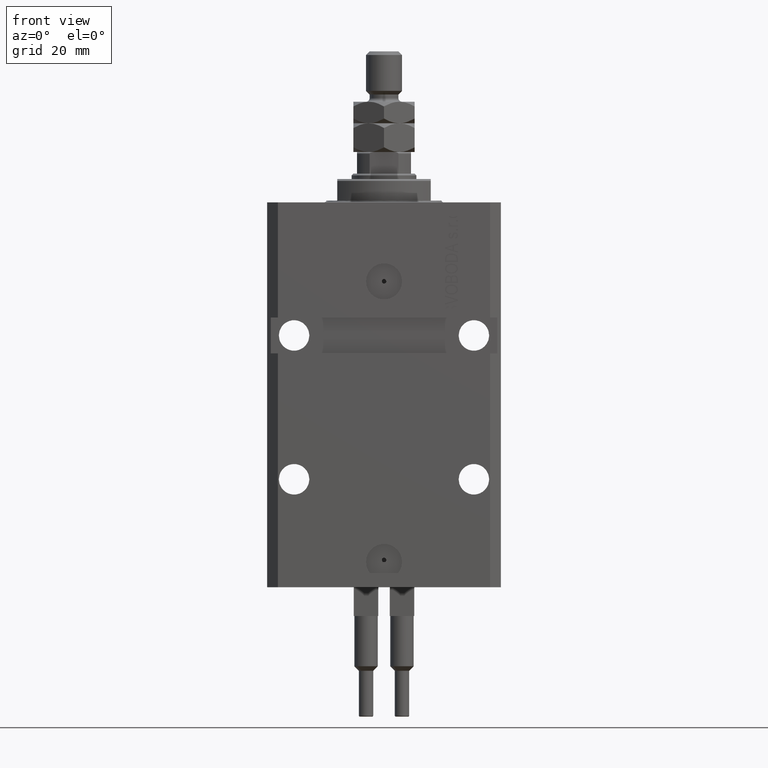
[diagram: clean part render]
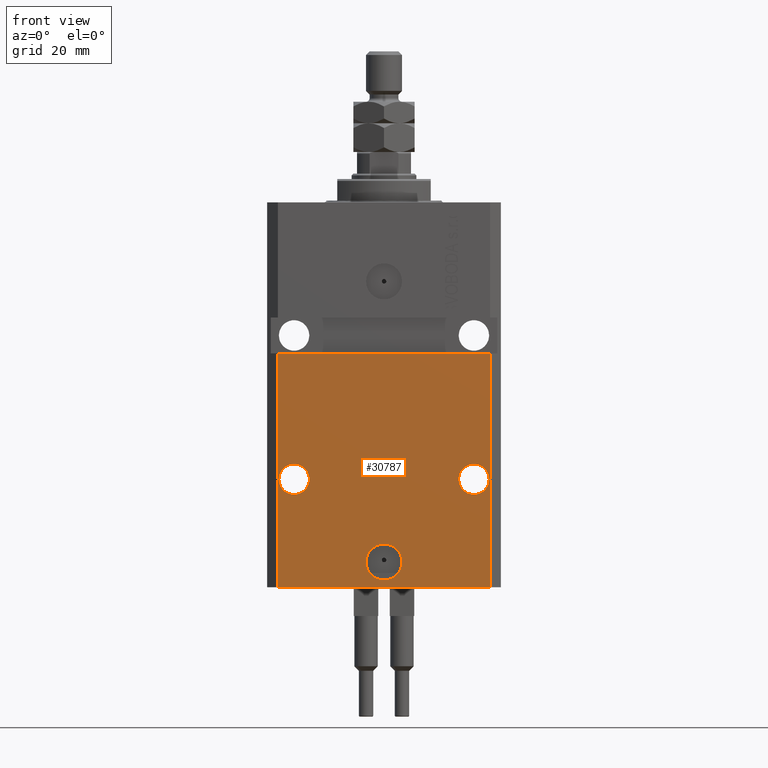
[diagram: same view with one face highlighted and labeled with its STEP entity id]
A machine part, front view. The second image highlights one B-rep face of the part: STEP entity #30787.
In plain terms, the highlighted planar face has unit normal (0, -1, 0).
Its self-contained STEP definition (entity closure, byte-faithful):
#46 = CARTESIAN_POINT ( 'NONE',  ( 20.75000000001094946, -22.49999999999949196, -76.99999999999998579 ) ) ;
#414 = CARTESIAN_POINT ( 'NONE',  ( -25.00000000000000000, -22.49999999999949907, -76.99999999999998579 ) ) ;
#962 = CARTESIAN_POINT ( 'NONE',  ( 29.49999999999650413, -22.49999999999949196, -107.0000000000000000 ) ) ;
#2114 = CARTESIAN_POINT ( 'NONE',  ( 29.49999999999650413, -22.49999999999949196, -107.0000000000000000 ) ) ;
#2456 = ORIENTED_EDGE ( 'NONE', *, *, #27126, .T. ) ;
#2990 = DIRECTION ( 'NONE',  ( 1.176083712526788232E-16, -1.000000000000000000, 0.000000000000000000 ) ) ;
#3236 = DIRECTION ( 'NONE',  ( 1.000000000000000000, 0.000000000000000000, 0.000000000000000000 ) ) ;
#3395 = VERTEX_POINT ( 'NONE', #12513 ) ;
#4142 = VERTEX_POINT ( 'NONE', #17199 ) ;
#5187 = EDGE_LOOP ( 'NONE', ( #12563, #32613 ) ) ;
#5619 = EDGE_CURVE ( 'NONE', #42084, #3395, #39750, .T. ) ;
#6086 = CARTESIAN_POINT ( 'NONE',  ( -29.49999999999650413, -22.49999999999949907, -41.99999999999999289 ) ) ;
#6750 = VERTEX_POINT ( 'NONE', #2114 ) ;
#6783 = DIRECTION ( 'NONE',  ( 1.176083712526788232E-16, -1.000000000000000000, 0.000000000000000000 ) ) ;
#6843 = CIRCLE ( 'NONE', #29567, 5.000000000000006217 ) ;
#7411 = EDGE_CURVE ( 'NONE', #35406, #6750, #7440, .T. ) ;
#7440 = LINE ( 'NONE', #50016, #13897 ) ;
#7790 = LINE ( 'NONE', #962, #25707 ) ;
#9569 = ORIENTED_EDGE ( 'NONE', *, *, #7411, .T. ) ;
#9744 = DIRECTION ( 'NONE',  ( 1.176083712526788232E-16, -1.000000000000000000, 0.000000000000000000 ) ) ;
#9929 = EDGE_LOOP ( 'NONE', ( #48056, #46658 ) ) ;
#11469 = ORIENTED_EDGE ( 'NONE', *, *, #26371, .F. ) ;
#11627 = VERTEX_POINT ( 'NONE', #27910 ) ;
#12062 = DIRECTION ( 'NONE',  ( -1.000000000000000000, 0.000000000000000000, 0.000000000000000000 ) ) ;
#12513 = CARTESIAN_POINT ( 'NONE',  ( -20.75000000002340883, -22.49999999999949907, -76.99999999999998579 ) ) ;
#12563 = ORIENTED_EDGE ( 'NONE', *, *, #46630, .F. ) ;
#12729 = AXIS2_PLACEMENT_3D ( 'NONE', #17593, #48019, #17837 ) ;
#12900 = VERTEX_POINT ( 'NONE', #20992 ) ;
#13897 = VECTOR ( 'NONE', #31044, 1000.000000000000000 ) ;
#14155 = CARTESIAN_POINT ( 'NONE',  ( -29.49999999999650413, -22.49999999999949907, -107.0000000000000000 ) ) ;
#14371 = DIRECTION ( 'NONE',  ( 1.176083712526788232E-16, -1.000000000000000000, 0.000000000000000000 ) ) ;
#14902 = ORIENTED_EDGE ( 'NONE', *, *, #28017, .F. ) ;
#15835 = EDGE_LOOP ( 'NONE', ( #28114, #11469 ) ) ;
#15862 = VERTEX_POINT ( 'NONE', #6086 ) ;
#15914 = DIRECTION ( 'NONE',  ( 0.000000000000000000, 0.000000000000000000, 1.000000000000000000 ) ) ;
#17096 = AXIS2_PLACEMENT_3D ( 'NONE', #19277, #46640, #26892 ) ;
#17199 = CARTESIAN_POINT ( 'NONE',  ( 29.24999999998906475, -22.49999999999949196, -76.99999999999998579 ) ) ;
#17345 = LINE ( 'NONE', #40402, #43044 ) ;
#17593 = CARTESIAN_POINT ( 'NONE',  ( 2.646188353185214061E-15, -22.49999999999949551, -99.99999999999998579 ) ) ;
#17837 = DIRECTION ( 'NONE',  ( 1.000000000000000000, 0.000000000000000000, 0.000000000000000000 ) ) ;
#18743 = EDGE_CURVE ( 'NONE', #3395, #42084, #34327, .T. ) ;
#19252 = VECTOR ( 'NONE', #20470, 1000.000000000000000 ) ;
#19277 = CARTESIAN_POINT ( 'NONE',  ( -25.00000000000000000, -22.49999999999949907, -76.99999999999998579 ) ) ;
#20470 = DIRECTION ( 'NONE',  ( 1.000000000000000000, 1.067522139062765303E-16, 1.067522139062765303E-16 ) ) ;
#20912 = EDGE_CURVE ( 'NONE', #11627, #22925, #6843, .T. ) ;
#20992 = CARTESIAN_POINT ( 'NONE',  ( 29.49999999999650058, -22.49999999999949196, -41.99999999999998579 ) ) ;
#21989 = PLANE ( 'NONE',  #33808 ) ;
#22740 = CARTESIAN_POINT ( 'NONE',  ( 25.00000000000000711, -22.49999999999949196, -76.99999999999998579 ) ) ;
#22801 = AXIS2_PLACEMENT_3D ( 'NONE', #45801, #2990, #3236 ) ;
#22925 = VERTEX_POINT ( 'NONE', #30522 ) ;
#24020 = LINE ( 'NONE', #32630, #19252 ) ;
#25678 = CIRCLE ( 'NONE', #12729, 5.000000000000006217 ) ;
#25707 = VECTOR ( 'NONE', #15914, 1000.000000000000000 ) ;
#26039 = FACE_OUTER_BOUND ( 'NONE', #27585, .T. ) ;
#26371 = EDGE_CURVE ( 'NONE', #22925, #11627, #25678, .T. ) ;
#26892 = DIRECTION ( 'NONE',  ( -1.000000000000000000, 0.000000000000000000, 0.000000000000000000 ) ) ;
#27126 = EDGE_CURVE ( 'NONE', #6750, #12900, #7790, .T. ) ;
#27585 = EDGE_LOOP ( 'NONE', ( #14902, #34138, #9569, #2456 ) ) ;
#27910 = CARTESIAN_POINT ( 'NONE',  ( 5.000000000000008882, -22.49999999999949551, -99.99999999999998579 ) ) ;
#28017 = EDGE_CURVE ( 'NONE', #15862, #12900, #24020, .T. ) ;
#28114 = ORIENTED_EDGE ( 'NONE', *, *, #20912, .F. ) ;
#29567 = AXIS2_PLACEMENT_3D ( 'NONE', #29779, #9744, #48774 ) ;
#29622 = CARTESIAN_POINT ( 'NONE',  ( -29.49999999999650413, -22.49999999999949907, -107.0000000000000000 ) ) ;
#29779 = CARTESIAN_POINT ( 'NONE',  ( 2.646188353185214061E-15, -22.49999999999949551, -99.99999999999998579 ) ) ;
#30522 = CARTESIAN_POINT ( 'NONE',  ( -5.000000000000003553, -22.49999999999949551, -99.99999999999998579 ) ) ;
#30652 = CIRCLE ( 'NONE', #48461, 4.249999999989057642 ) ;
#30787 = ADVANCED_FACE ( 'NONE', ( #45053, #34401, #45293, #26039 ), #21989, .T. ) ;
#31044 = DIRECTION ( 'NONE',  ( 1.000000000000000000, 1.176083712526788232E-16, 0.000000000000000000 ) ) ;
#31102 = VERTEX_POINT ( 'NONE', #46 ) ;
#31343 = DIRECTION ( 'NONE',  ( 1.176083712526788232E-16, -1.000000000000000000, 0.000000000000000000 ) ) ;
#32547 = EDGE_CURVE ( 'NONE', #31102, #4142, #30652, .T. ) ;
#32613 = ORIENTED_EDGE ( 'NONE', *, *, #32547, .F. ) ;
#32630 = CARTESIAN_POINT ( 'NONE',  ( -32.49999999999650413, -22.49999999999949907, -41.99999999999999289 ) ) ;
#33808 = AXIS2_PLACEMENT_3D ( 'NONE', #29622, #14371, #49591 ) ;
#34138 = ORIENTED_EDGE ( 'NONE', *, *, #45866, .F. ) ;
#34327 = CIRCLE ( 'NONE', #44850, 4.249999999976592058 ) ;
#34401 = FACE_BOUND ( 'NONE', #5187, .T. ) ;
#35406 = VERTEX_POINT ( 'NONE', #14155 ) ;
#38241 = CARTESIAN_POINT ( 'NONE',  ( -29.24999999997659472, -22.49999999999949907, -76.99999999999998579 ) ) ;
#39750 = CIRCLE ( 'NONE', #17096, 4.249999999976592058 ) ;
#39915 = DIRECTION ( 'NONE',  ( 0.000000000000000000, 0.000000000000000000, 1.000000000000000000 ) ) ;
#40402 = CARTESIAN_POINT ( 'NONE',  ( -29.49999999999650413, -22.49999999999949907, -107.0000000000000000 ) ) ;
#42084 = VERTEX_POINT ( 'NONE', #38241 ) ;
#42507 = DIRECTION ( 'NONE',  ( 1.000000000000000000, 0.000000000000000000, 0.000000000000000000 ) ) ;
#43044 = VECTOR ( 'NONE', #39915, 1000.000000000000000 ) ;
#44674 = CIRCLE ( 'NONE', #22801, 4.249999999989057642 ) ;
#44850 = AXIS2_PLACEMENT_3D ( 'NONE', #414, #31343, #12062 ) ;
#45053 = FACE_BOUND ( 'NONE', #15835, .T. ) ;
#45293 = FACE_BOUND ( 'NONE', #9929, .T. ) ;
#45801 = CARTESIAN_POINT ( 'NONE',  ( 25.00000000000000711, -22.49999999999949196, -76.99999999999998579 ) ) ;
#45866 = EDGE_CURVE ( 'NONE', #35406, #15862, #17345, .T. ) ;
#46630 = EDGE_CURVE ( 'NONE', #4142, #31102, #44674, .T. ) ;
#46640 = DIRECTION ( 'NONE',  ( 1.176083712526788232E-16, -1.000000000000000000, 0.000000000000000000 ) ) ;
#46658 = ORIENTED_EDGE ( 'NONE', *, *, #5619, .F. ) ;
#48019 = DIRECTION ( 'NONE',  ( 1.176083712526788232E-16, -1.000000000000000000, 0.000000000000000000 ) ) ;
#48056 = ORIENTED_EDGE ( 'NONE', *, *, #18743, .F. ) ;
#48461 = AXIS2_PLACEMENT_3D ( 'NONE', #22740, #6783, #42507 ) ;
#48774 = DIRECTION ( 'NONE',  ( 1.000000000000000000, 0.000000000000000000, 0.000000000000000000 ) ) ;
#49591 = DIRECTION ( 'NONE',  ( 1.000000000000000000, 1.176083712526788232E-16, 0.000000000000000000 ) ) ;
#50016 = CARTESIAN_POINT ( 'NONE',  ( -29.49999999999650413, -22.49999999999949907, -107.0000000000000000 ) ) ;